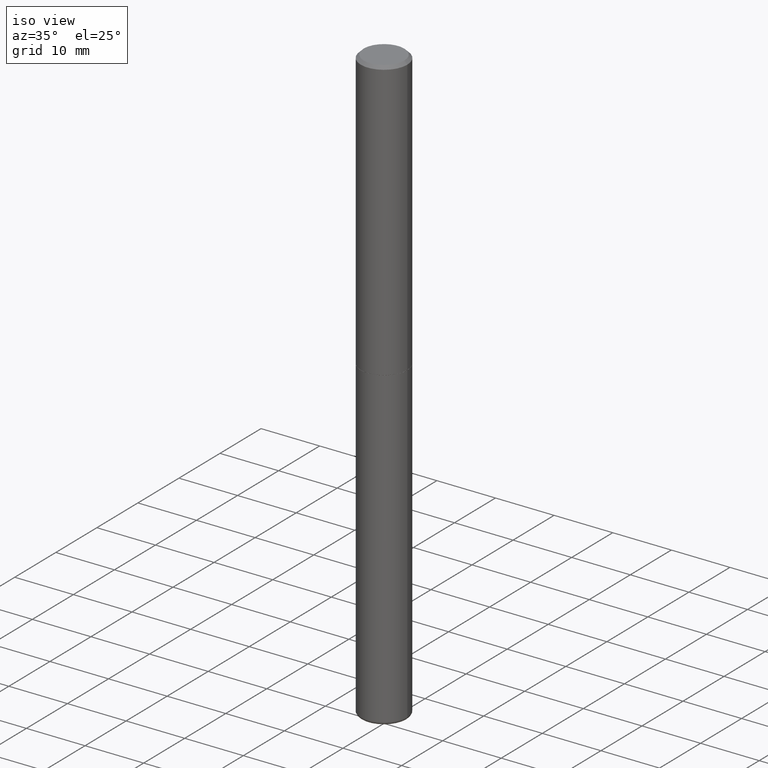
[diagram: clean part render]
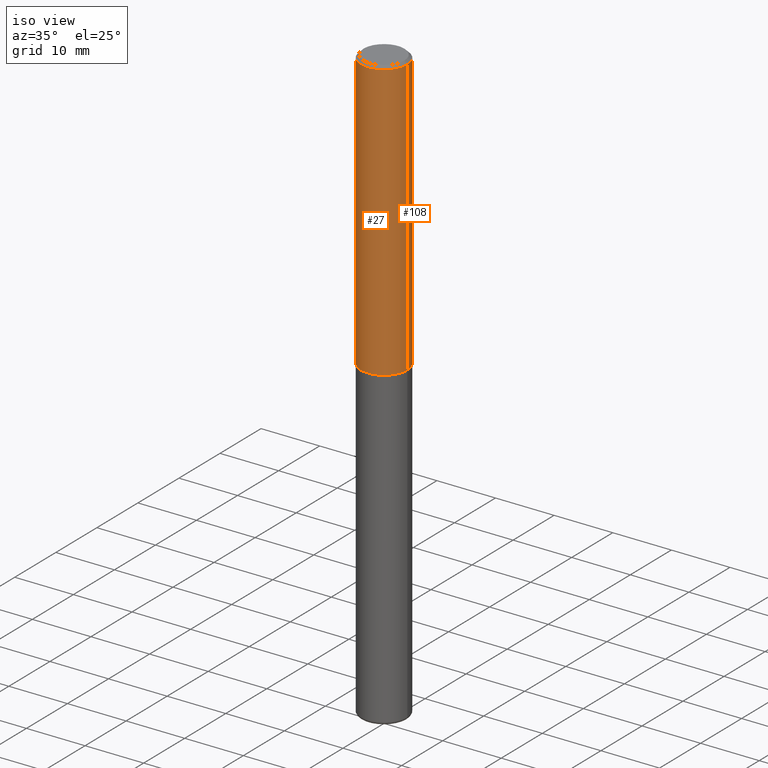
[diagram: same view with one multi-face feature highlighted, each face labeled with its STEP entity id]
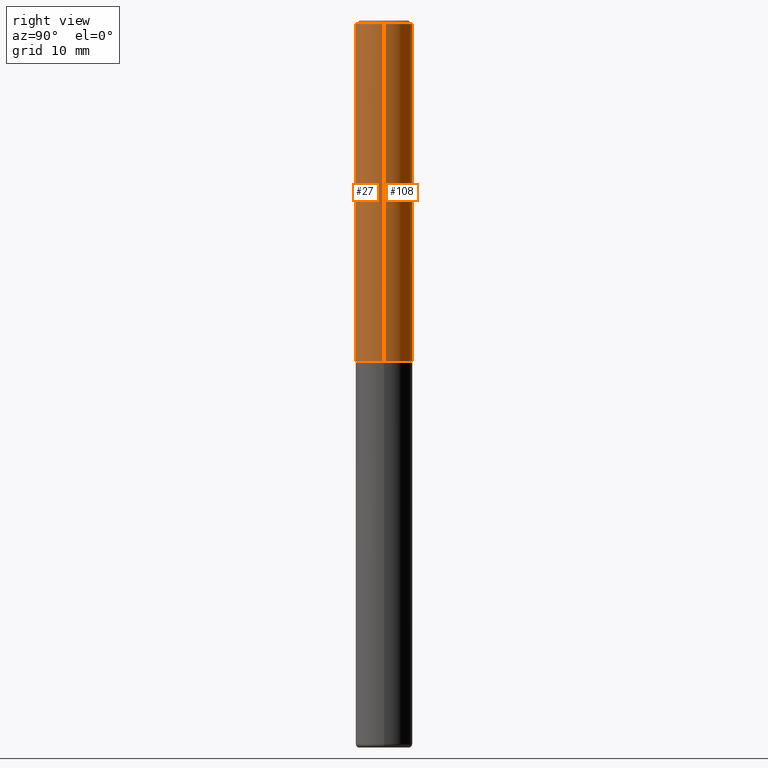
[diagram: same view with one multi-face feature highlighted, each face labeled with its STEP entity id]
A machine part, iso view. The highlighted faces form ONE feature: a constant-radius fillet chain: 2 tangent blend faces with common blend radius 3.9687 mm. The faces share edges in the B-rep.
A second angle (right view) of the same feature is appended — it is thin or edge-on in the first view.
Their STEP definitions:
[1] entity #27 (Cylinder):
#13 = DIRECTION ( 'NONE',  ( 1.000000000000000000, -6.982962677686269077E-15, 0.000000000000000000 ) ) ;
#27 = ADVANCED_FACE ( 'NONE', ( #83 ), #202, .T. ) ;
#40 = DIRECTION ( 'NONE',  ( 1.000000000000000000, -6.982962677686265133E-15, 0.000000000000000000 ) ) ;
#41 = EDGE_CURVE ( 'NONE', #59, #430, #157, .T. ) ;
#56 = VERTEX_POINT ( 'NONE', #115 ) ;
#59 = VERTEX_POINT ( 'NONE', #417 ) ;
#60 = EDGE_CURVE ( 'NONE', #316, #59, #362, .T. ) ;
#72 = VECTOR ( 'NONE', #135, 39.37007874015748143 ) ;
#83 = FACE_OUTER_BOUND ( 'NONE', #356, .T. ) ;
#88 = CARTESIAN_POINT ( 'NONE',  ( 0.1562499999999997224, -1.091087918388477399E-15, 7.619026212181136364E-30 ) ) ;
#107 = CIRCLE ( 'NONE', #453, 0.1562499999999994726 ) ;
#115 = CARTESIAN_POINT ( 'NONE',  ( -0.1562499999999994726, 1.021258291611612128E-15, -0.02000000000000007674 ) ) ;
#116 = CARTESIAN_POINT ( 'NONE',  ( 4.890937612370292426E-31, -6.982962677686317493E-17, -0.02000000000000007674 ) ) ;
#132 = LINE ( 'NONE', #280, #72 ) ;
#135 = DIRECTION ( 'NONE',  ( -2.445468806185136877E-29, 3.491481338843145188E-15, 1.000000000000000000 ) ) ;
#157 = LINE ( 'NONE', #88, #237 ) ;
#158 = CARTESIAN_POINT ( 'NONE',  ( -0.1562500000000000000, -2.196209803259297437E-15, -1.874000000000000332 ) ) ;
#165 = ORIENTED_EDGE ( 'NONE', *, *, #336, .F. ) ;
#195 = ORIENTED_EDGE ( 'NONE', *, *, #41, .T. ) ;
#197 = CARTESIAN_POINT ( 'NONE',  ( 4.582808542790946637E-29, -6.543036028992055700E-15, -1.874000000000000332 ) ) ;
#198 = CARTESIAN_POINT ( 'NONE',  ( 0.1562499999999994726, -1.141782438928661161E-15, -0.02000000000000007674 ) ) ;
#202 = CYLINDRICAL_SURFACE ( 'NONE', #261, 0.1562499999999997224 ) ;
#209 = ORIENTED_EDGE ( 'NONE', *, *, #457, .F. ) ;
#212 = DIRECTION ( 'NONE',  ( -2.445468806185136597E-29, 3.491481338843145583E-15, 1.000000000000000000 ) ) ;
#226 = DIRECTION ( 'NONE',  ( -2.445468806185136597E-29, 3.491481338843145583E-15, 1.000000000000000000 ) ) ;
#237 = VECTOR ( 'NONE', #351, 39.37007874015748143 ) ;
#238 = CARTESIAN_POINT ( 'NONE',  ( 0.000000000000000000, 0.000000000000000000, 0.000000000000000000 ) ) ;
#261 = AXIS2_PLACEMENT_3D ( 'NONE', #238, #212, #386 ) ;
#280 = CARTESIAN_POINT ( 'NONE',  ( -0.1562499999999997224, 1.110223024625154568E-15, -7.685836078523277147E-30 ) ) ;
#289 = AXIS2_PLACEMENT_3D ( 'NONE', #197, #348, #13 ) ;
#316 = VERTEX_POINT ( 'NONE', #158 ) ;
#327 = ORIENTED_EDGE ( 'NONE', *, *, #60, .T. ) ;
#336 = EDGE_CURVE ( 'NONE', #56, #430, #107, .T. ) ;
#348 = DIRECTION ( 'NONE',  ( -2.445468806185136597E-29, 3.491481338843145583E-15, 1.000000000000000000 ) ) ;
#351 = DIRECTION ( 'NONE',  ( -2.445468806185136877E-29, 3.491481338843145188E-15, 1.000000000000000000 ) ) ;
#356 = EDGE_LOOP ( 'NONE', ( #209, #327, #195, #165 ) ) ;
#362 = CIRCLE ( 'NONE', #289, 0.1562500000000000000 ) ;
#386 = DIRECTION ( 'NONE',  ( 1.000000000000000000, -6.982962677686267499E-15, 4.876176775795935793E-29 ) ) ;
#417 = CARTESIAN_POINT ( 'NONE',  ( 0.1562500000000000000, -7.634123947380535662E-15, -1.874000000000000332 ) ) ;
#430 = VERTEX_POINT ( 'NONE', #198 ) ;
#453 = AXIS2_PLACEMENT_3D ( 'NONE', #116, #226, #40 ) ;
#457 = EDGE_CURVE ( 'NONE', #316, #56, #132, .T. ) ;
[2] entity #108 (Cylinder):
#9 = DIRECTION ( 'NONE',  ( 1.000000000000000000, -6.982962677686269077E-15, 0.000000000000000000 ) ) ;
#30 = DIRECTION ( 'NONE',  ( 1.000000000000000000, -6.982962677686265133E-15, 0.000000000000000000 ) ) ;
#36 = EDGE_CURVE ( 'NONE', #59, #316, #278, .T. ) ;
#39 = AXIS2_PLACEMENT_3D ( 'NONE', #52, #241, #9 ) ;
#41 = EDGE_CURVE ( 'NONE', #59, #430, #157, .T. ) ;
#48 = AXIS2_PLACEMENT_3D ( 'NONE', #80, #259, #101 ) ;
#52 = CARTESIAN_POINT ( 'NONE',  ( 4.582808542790946637E-29, -6.543036028992055700E-15, -1.874000000000000332 ) ) ;
#56 = VERTEX_POINT ( 'NONE', #115 ) ;
#59 = VERTEX_POINT ( 'NONE', #417 ) ;
#64 = DIRECTION ( 'NONE',  ( -2.445468806185136597E-29, 3.491481338843145583E-15, 1.000000000000000000 ) ) ;
#72 = VECTOR ( 'NONE', #135, 39.37007874015748143 ) ;
#80 = CARTESIAN_POINT ( 'NONE',  ( 0.000000000000000000, 0.000000000000000000, 0.000000000000000000 ) ) ;
#88 = CARTESIAN_POINT ( 'NONE',  ( 0.1562499999999997224, -1.091087918388477399E-15, 7.619026212181136364E-30 ) ) ;
#90 = ORIENTED_EDGE ( 'NONE', *, *, #457, .T. ) ;
#101 = DIRECTION ( 'NONE',  ( 1.000000000000000000, -6.982962677686267499E-15, 4.876176775795935793E-29 ) ) ;
#105 = CIRCLE ( 'NONE', #385, 0.1562499999999994726 ) ;
#108 = ADVANCED_FACE ( 'NONE', ( #142 ), #405, .T. ) ;
#115 = CARTESIAN_POINT ( 'NONE',  ( -0.1562499999999994726, 1.021258291611612128E-15, -0.02000000000000007674 ) ) ;
#118 = EDGE_CURVE ( 'NONE', #430, #56, #105, .T. ) ;
#130 = ORIENTED_EDGE ( 'NONE', *, *, #118, .F. ) ;
#132 = LINE ( 'NONE', #280, #72 ) ;
#135 = DIRECTION ( 'NONE',  ( -2.445468806185136877E-29, 3.491481338843145188E-15, 1.000000000000000000 ) ) ;
#142 = FACE_OUTER_BOUND ( 'NONE', #162, .T. ) ;
#157 = LINE ( 'NONE', #88, #237 ) ;
#158 = CARTESIAN_POINT ( 'NONE',  ( -0.1562500000000000000, -2.196209803259297437E-15, -1.874000000000000332 ) ) ;
#162 = EDGE_LOOP ( 'NONE', ( #476, #90, #130, #243 ) ) ;
#176 = CARTESIAN_POINT ( 'NONE',  ( 4.890937612370292426E-31, -6.982962677686317493E-17, -0.02000000000000007674 ) ) ;
#198 = CARTESIAN_POINT ( 'NONE',  ( 0.1562499999999994726, -1.141782438928661161E-15, -0.02000000000000007674 ) ) ;
#237 = VECTOR ( 'NONE', #351, 39.37007874015748143 ) ;
#241 = DIRECTION ( 'NONE',  ( -2.445468806185136597E-29, 3.491481338843145583E-15, 1.000000000000000000 ) ) ;
#243 = ORIENTED_EDGE ( 'NONE', *, *, #41, .F. ) ;
#259 = DIRECTION ( 'NONE',  ( -2.445468806185136597E-29, 3.491481338843145583E-15, 1.000000000000000000 ) ) ;
#278 = CIRCLE ( 'NONE', #39, 0.1562500000000000000 ) ;
#280 = CARTESIAN_POINT ( 'NONE',  ( -0.1562499999999997224, 1.110223024625154568E-15, -7.685836078523277147E-30 ) ) ;
#316 = VERTEX_POINT ( 'NONE', #158 ) ;
#351 = DIRECTION ( 'NONE',  ( -2.445468806185136877E-29, 3.491481338843145188E-15, 1.000000000000000000 ) ) ;
#385 = AXIS2_PLACEMENT_3D ( 'NONE', #176, #64, #30 ) ;
#405 = CYLINDRICAL_SURFACE ( 'NONE', #48, 0.1562499999999997224 ) ;
#417 = CARTESIAN_POINT ( 'NONE',  ( 0.1562500000000000000, -7.634123947380535662E-15, -1.874000000000000332 ) ) ;
#430 = VERTEX_POINT ( 'NONE', #198 ) ;
#457 = EDGE_CURVE ( 'NONE', #316, #56, #132, .T. ) ;
#476 = ORIENTED_EDGE ( 'NONE', *, *, #36, .T. ) ;